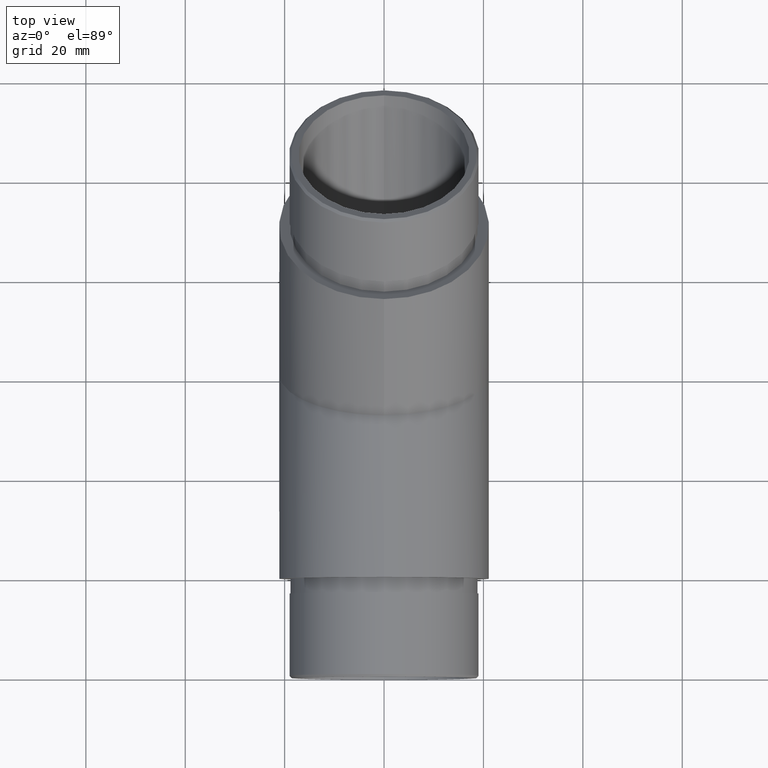
[diagram: clean part render]
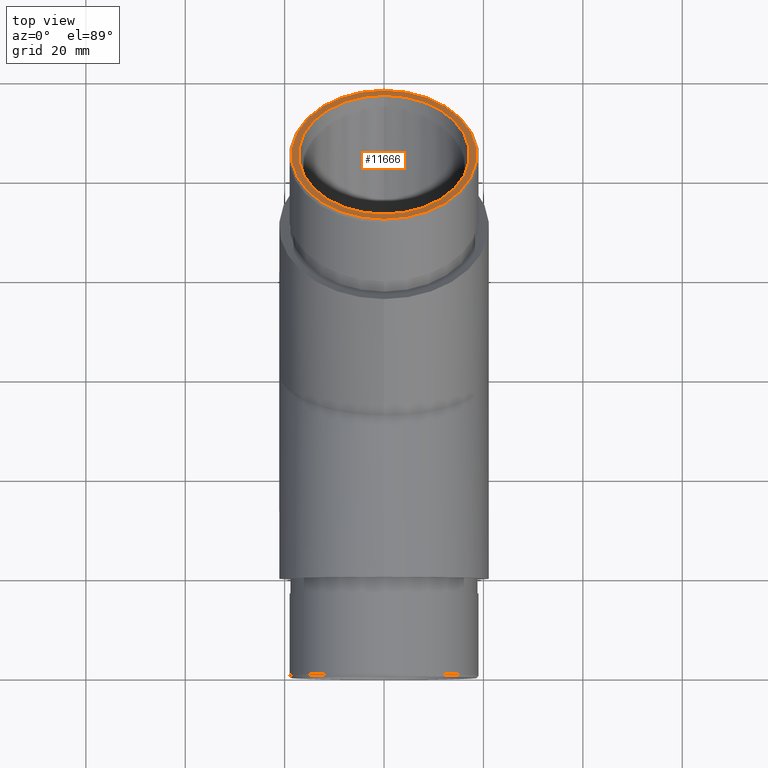
[diagram: same view with one face highlighted and labeled with its STEP entity id]
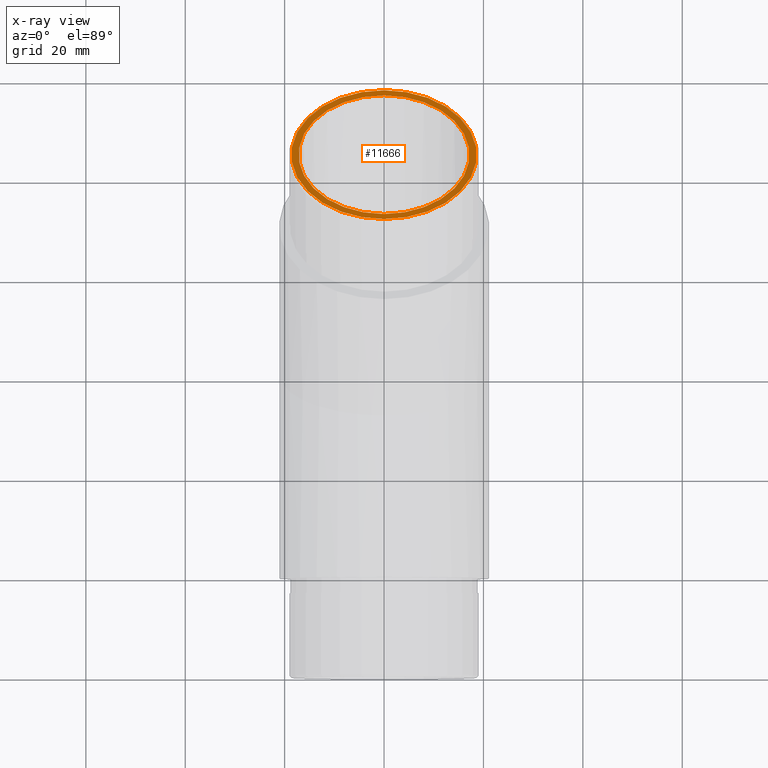
[diagram: x-ray of the same camera — body ghosted, the highlighted face saturated]
A machine part, top view. The second image highlights one B-rep face of the part: STEP entity #11666.
The next image is the same camera in x-ray: the body ghosted, the highlighted face saturated — about 0% of this face is hidden behind the body in this view.
In plain terms, the highlighted planar face has unit normal (0, 0.7071, 0.7071).
Its self-contained STEP definition (entity closure, byte-faithful):
#615 = PLANE ( 'NONE',  #12048 ) ;
#774 = ORIENTED_EDGE ( 'NONE', *, *, #4130, .T. ) ;
#936 = CARTESIAN_POINT ( 'NONE',  ( 0.0000000000000000000, 96.73975823643073100, 31.15519112968601000 ) ) ;
#1048 = DIRECTION ( 'NONE',  ( 0.0000000000000000000, 0.7071067811865491300, -0.7071067811865459100 ) ) ;
#1686 = CIRCLE ( 'NONE', #8268, 17.19999999999999600 ) ;
#2118 = CARTESIAN_POINT ( 'NONE',  ( 0.0000000000000000000, 71.38998013089296500, 56.50496923522365500 ) ) ;
#2898 = DIRECTION ( 'NONE',  ( 0.0000000000000000000, 0.7071067811865458000, 0.7071067811865492400 ) ) ;
#2976 = CARTESIAN_POINT ( 'NONE',  ( 0.0000000000000000000, 84.57752160002209500, 43.31742776609459600 ) ) ;
#4130 = EDGE_CURVE ( 'NONE', #8360, #8360, #10001, .T. ) ;
#5103 = EDGE_LOOP ( 'NONE', ( #11616 ) ) ;
#5310 = CARTESIAN_POINT ( 'NONE',  ( 0.0000000000000000000, 84.57752160002209500, 43.31742776609459600 ) ) ;
#5810 = EDGE_LOOP ( 'NONE', ( #774 ) ) ;
#6628 = VERTEX_POINT ( 'NONE', #936 ) ;
#7405 = CARTESIAN_POINT ( 'NONE',  ( 0.0000000000000000000, 84.57752160002209500, 43.31742776609459600 ) ) ;
#7431 = FACE_BOUND ( 'NONE', #5103, .T. ) ;
#8268 = AXIS2_PLACEMENT_3D ( 'NONE', #5310, #11423, #1048 ) ;
#8360 = VERTEX_POINT ( 'NONE', #2118 ) ;
#10001 = CIRCLE ( 'NONE', #12524, 18.64999999999997000 ) ;
#10335 = FACE_OUTER_BOUND ( 'NONE', #5810, .T. ) ;
#11423 = DIRECTION ( 'NONE',  ( -0.0000000000000000000, -0.7071067811865459100, -0.7071067811865492400 ) ) ;
#11522 = DIRECTION ( 'NONE',  ( 0.0000000000000000000, 0.7071067811865459100, 0.7071067811865492400 ) ) ;
#11616 = ORIENTED_EDGE ( 'NONE', *, *, #12639, .T. ) ;
#11666 = ADVANCED_FACE ( 'NONE', ( #10335, #7431 ), #615, .T. ) ;
#12048 = AXIS2_PLACEMENT_3D ( 'NONE', #2976, #2898, #13136 ) ;
#12410 = DIRECTION ( 'NONE',  ( 0.0000000000000000000, -0.7071067811865491300, 0.7071067811865458000 ) ) ;
#12524 = AXIS2_PLACEMENT_3D ( 'NONE', #7405, #11522, #12410 ) ;
#12639 = EDGE_CURVE ( 'NONE', #6628, #6628, #1686, .T. ) ;
#13136 = DIRECTION ( 'NONE',  ( 0.0000000000000000000, 0.7071067811865492400, -0.7071067811865458000 ) ) ;